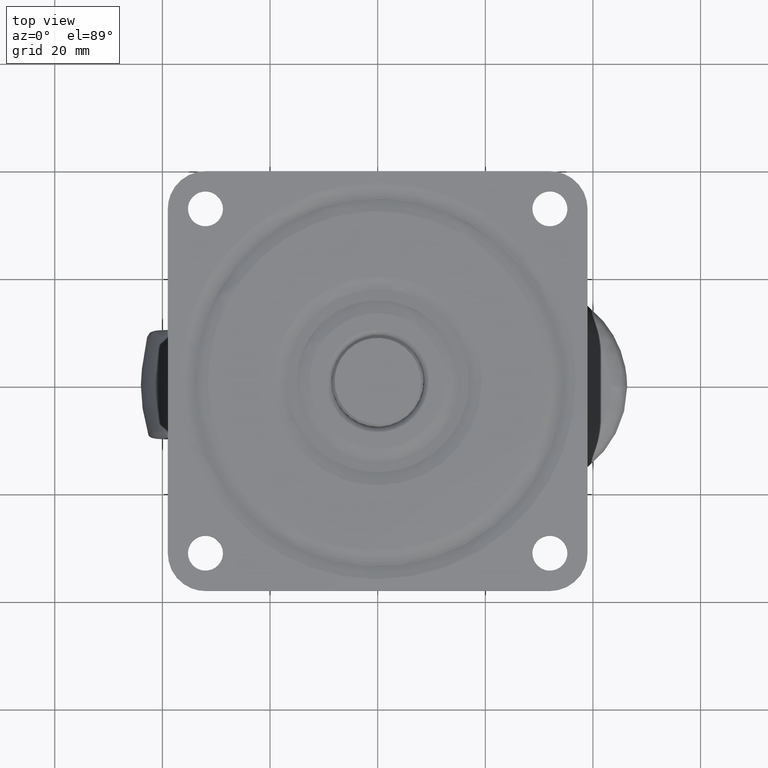
[diagram: clean part render]
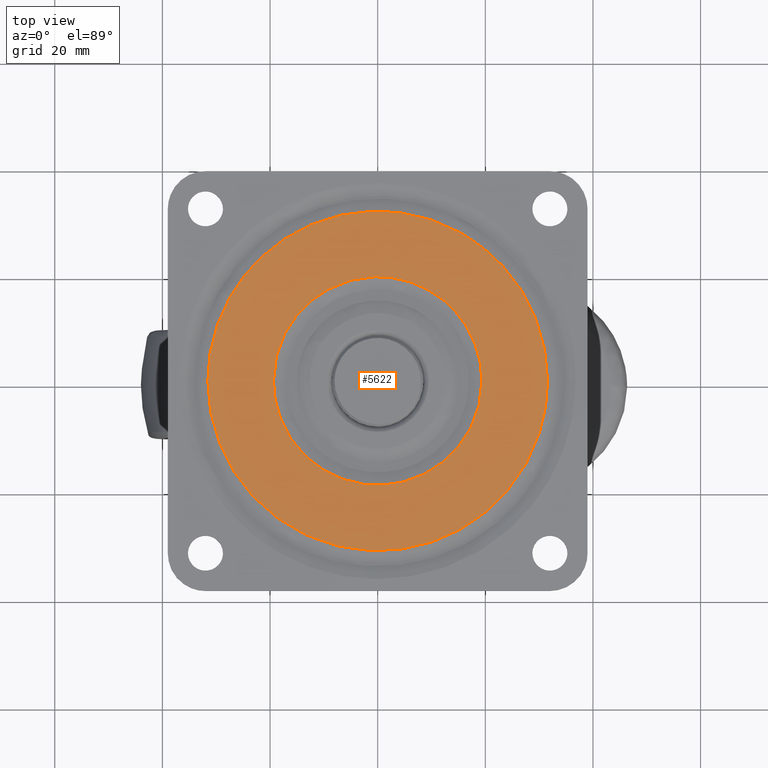
[diagram: same view with one face highlighted and labeled with its STEP entity id]
A machine part, top view. The second image highlights one B-rep face of the part: STEP entity #5622.
In plain terms, the highlighted face is a freeform B-spline surface patch.
Its self-contained STEP definition (entity closure, byte-faithful):
#3673=CARTESIAN_POINT('',(-9.333915490546872,16.978329247915600,-8.268803E-016));
#3674=VERTEX_POINT('',#3673);
#3688=CARTESIAN_POINT('',(-19.374871417407501,0.0,0.0));
#3689=VERTEX_POINT('',#3688);
#3690=CARTESIAN_POINT('',(-19.374871417407501,0.0,0.0));
#3691=CARTESIAN_POINT('',(-19.374871417407505,11.458267014778658,0.0));
#3692=CARTESIAN_POINT('',(-9.333915490546870,16.978329247915596,-8.268803E-016));
#3700=(BOUNDED_CURVE()B_SPLINE_CURVE(2,(#3690,#3691,#3692),.UNSPECIFIED.,.F.,.U.)B_SPLINE_CURVE_WITH_KNOTS((3,3),(0.0,0.167949183896074),.UNSPECIFIED.)CURVE()GEOMETRIC_REPRESENTATION_ITEM()RATIONAL_B_SPLINE_CURVE((1.0,0.803235291726346,0.870842360845566))REPRESENTATION_ITEM(''));
#3701=EDGE_CURVE('',#3689,#3674,#3700,.T.);
#3703=CARTESIAN_POINT('',(19.374871417407501,0.0,0.0));
#3704=VERTEX_POINT('',#3703);
#3705=CARTESIAN_POINT('',(19.374871417407501,0.0,0.0));
#3706=CARTESIAN_POINT('',(19.374871417407505,-19.374871417407505,0.0));
#3707=CARTESIAN_POINT('',(0.0,-19.374871417407501,0.0));
#3708=CARTESIAN_POINT('',(-19.374871417407505,-19.374871417407505,0.0));
#3709=CARTESIAN_POINT('',(-19.374871417407501,0.0,0.0));
#3717=(BOUNDED_CURVE()B_SPLINE_CURVE(2,(#3705,#3706,#3707,#3708,#3709),.UNSPECIFIED.,.F.,.U.)B_SPLINE_CURVE_WITH_KNOTS((3,2,3),(0.500000000000000,0.750000000000000,1.0),.UNSPECIFIED.)CURVE()GEOMETRIC_REPRESENTATION_ITEM()RATIONAL_B_SPLINE_CURVE((1.0,0.707106781186547,1.0,0.707106781186547,1.0))REPRESENTATION_ITEM(''));
#3718=EDGE_CURVE('',#3704,#3689,#3717,.T.);
#3720=CARTESIAN_POINT('',(16.416710742302790,10.289667187493359,-9.063303E-016));
#3721=VERTEX_POINT('',#3720);
#3722=CARTESIAN_POINT('',(16.416710742302790,10.289667187493359,-9.063303E-016));
#3723=CARTESIAN_POINT('',(19.374871417407498,5.570052136830165,0.0));
#3724=CARTESIAN_POINT('',(19.374871417407501,0.0,0.0));
#3732=(BOUNDED_CURVE()B_SPLINE_CURVE(2,(#3722,#3723,#3724),.UNSPECIFIED.,.F.,.U.)B_SPLINE_CURVE_WITH_KNOTS((3,3),(0.409173271052653,0.500000000000000),.UNSPECIFIED.)CURVE()GEOMETRIC_REPRESENTATION_ITEM()RATIONAL_B_SPLINE_CURVE((0.864498809753300,0.893589868017258,1.0))REPRESENTATION_ITEM(''));
#3733=EDGE_CURVE('',#3721,#3704,#3732,.T.);
#3784=CARTESIAN_POINT('',(-9.333915490546870,16.978329247915596,-8.268803E-016));
#3785=CARTESIAN_POINT('',(-4.974621467768005,19.374871417407501,0.0));
#3786=CARTESIAN_POINT('',(0.0,19.374871417407501,0.0));
#3787=CARTESIAN_POINT('',(10.722285755664139,19.374871417407501,0.0));
#3788=CARTESIAN_POINT('',(16.416710742302790,10.289667187493359,-9.063303E-016));
#3796=(BOUNDED_CURVE()B_SPLINE_CURVE(2,(#3784,#3785,#3786,#3787,#3788),.UNSPECIFIED.,.F.,.U.)B_SPLINE_CURVE_WITH_KNOTS((3,2,3),(0.167949183896074,0.250000000000000,0.409173271052653),.UNSPECIFIED.)CURVE()GEOMETRIC_REPRESENTATION_ITEM()RATIONAL_B_SPLINE_CURVE((0.870842360845566,0.903871489460202,1.0,0.813516913169290,0.864498809753300))REPRESENTATION_ITEM(''));
#3797=EDGE_CURVE('',#3674,#3721,#3796,.T.);
#4523=CARTESIAN_POINT('',(15.549467066445761,27.461219408746729,-9.427636E-016));
#4524=VERTEX_POINT('',#4523);
#4538=CARTESIAN_POINT('',(31.557954582592298,0.0,0.0));
#4539=VERTEX_POINT('',#4538);
#4540=CARTESIAN_POINT('',(31.557954582592298,0.0,0.0));
#4541=CARTESIAN_POINT('',(31.557954582592306,18.396674760308017,0.0));
#4542=CARTESIAN_POINT('',(15.549467066445761,27.461219408746729,-9.427636E-016));
#4550=(BOUNDED_CURVE()B_SPLINE_CURVE(2,(#4540,#4541,#4542),.UNSPECIFIED.,.F.,.U.)B_SPLINE_CURVE_WITH_KNOTS((3,3),(0.500000000000000,0.666016361515029),.UNSPECIFIED.)CURVE()GEOMETRIC_REPRESENTATION_ITEM()RATIONAL_B_SPLINE_CURVE((1.0,0.805499734000662,0.869321279800647))REPRESENTATION_ITEM(''));
#4551=EDGE_CURVE('',#4539,#4524,#4550,.T.);
#4553=CARTESIAN_POINT('',(-31.557954582592298,0.0,0.0));
#4554=VERTEX_POINT('',#4553);
#4555=CARTESIAN_POINT('',(-31.557954582592298,0.0,0.0));
#4556=CARTESIAN_POINT('',(-31.557954582592298,-31.557954582592298,0.0));
#4557=CARTESIAN_POINT('',(0.0,-31.557954582592298,0.0));
#4558=CARTESIAN_POINT('',(31.557954582592298,-31.557954582592298,0.0));
#4559=CARTESIAN_POINT('',(31.557954582592298,0.0,0.0));
#4567=(BOUNDED_CURVE()B_SPLINE_CURVE(2,(#4555,#4556,#4557,#4558,#4559),.UNSPECIFIED.,.F.,.U.)B_SPLINE_CURVE_WITH_KNOTS((3,2,3),(0.0,0.250000000000000,0.500000000000000),.UNSPECIFIED.)CURVE()GEOMETRIC_REPRESENTATION_ITEM()RATIONAL_B_SPLINE_CURVE((1.0,0.707106781186548,1.0,0.707106781186548,1.0))REPRESENTATION_ITEM(''));
#4568=EDGE_CURVE('',#4554,#4539,#4567,.T.);
#4570=CARTESIAN_POINT('',(-27.461219408746729,15.549467066445770,-9.427636E-016));
#4571=VERTEX_POINT('',#4570);
#4572=CARTESIAN_POINT('',(-27.461219408746725,15.549467066445763,-9.427636E-016));
#4573=CARTESIAN_POINT('',(-31.557954582592302,8.314406018898238,0.0));
#4574=CARTESIAN_POINT('',(-31.557954582592298,0.0,0.0));
#4582=(BOUNDED_CURVE()B_SPLINE_CURVE(2,(#4572,#4573,#4574),.UNSPECIFIED.,.F.,.U.)B_SPLINE_CURVE_WITH_KNOTS((3,3),(0.916016361515028,1.0),.UNSPECIFIED.)CURVE()GEOMETRIC_REPRESENTATION_ITEM()RATIONAL_B_SPLINE_CURVE((0.869321279800646,0.901607047185885,1.0))REPRESENTATION_ITEM(''));
#4583=EDGE_CURVE('',#4571,#4554,#4582,.T.);
#4634=CARTESIAN_POINT('',(15.549467066445763,27.461219408746725,-9.427636E-016));
#4635=CARTESIAN_POINT('',(8.314406018898238,31.557954582592302,0.0));
#4636=CARTESIAN_POINT('',(0.0,31.557954582592298,0.0));
#4637=CARTESIAN_POINT('',(-18.396674760307768,31.557954582592295,0.0));
#4638=CARTESIAN_POINT('',(-27.461219408746739,15.549467066445763,-9.427636E-016));
#4646=(BOUNDED_CURVE()B_SPLINE_CURVE(2,(#4634,#4635,#4636,#4637,#4638),.UNSPECIFIED.,.F.,.U.)B_SPLINE_CURVE_WITH_KNOTS((3,2,3),(0.666016361515028,0.750000000000000,0.916016361515027),.UNSPECIFIED.)CURVE()GEOMETRIC_REPRESENTATION_ITEM()RATIONAL_B_SPLINE_CURVE((0.869321279800646,0.901607047185885,1.0,0.805499734000664,0.869321279800646))REPRESENTATION_ITEM(''));
#4647=EDGE_CURVE('',#4524,#4571,#4646,.T.);
#5605=CARTESIAN_POINT('',(-34.710594715549391,34.709433292715822,0.0));
#5606=CARTESIAN_POINT('',(34.710595844149793,34.709433292715822,0.0));
#5607=CARTESIAN_POINT('',(-34.710594715549391,-34.710540590504714,0.0));
#5608=CARTESIAN_POINT('',(34.710595844149793,-34.710540590504714,0.0));
#5609=B_SPLINE_SURFACE_WITH_KNOTS('',1,1,((#5605,#5607),(#5606,#5608)),.UNSPECIFIED.,.F.,.F.,.U.,(2,2),(2,2),(0.0,69.421190559699184),(0.0,69.419973883220536),.UNSPECIFIED.);
#5610=ORIENTED_EDGE('',*,*,#4568,.T.);
#5611=ORIENTED_EDGE('',*,*,#4551,.T.);
#5612=ORIENTED_EDGE('',*,*,#4647,.T.);
#5613=ORIENTED_EDGE('',*,*,#4583,.T.);
#5614=EDGE_LOOP('',(#5610,#5611,#5612,#5613));
#5615=FACE_OUTER_BOUND('',#5614,.T.);
#5616=ORIENTED_EDGE('',*,*,#3718,.T.);
#5617=ORIENTED_EDGE('',*,*,#3701,.T.);
#5618=ORIENTED_EDGE('',*,*,#3797,.T.);
#5619=ORIENTED_EDGE('',*,*,#3733,.T.);
#5620=EDGE_LOOP('',(#5616,#5617,#5618,#5619));
#5621=FACE_BOUND('',#5620,.T.);
#5622=ADVANCED_FACE('',(#5615,#5621),#5609,.F.);